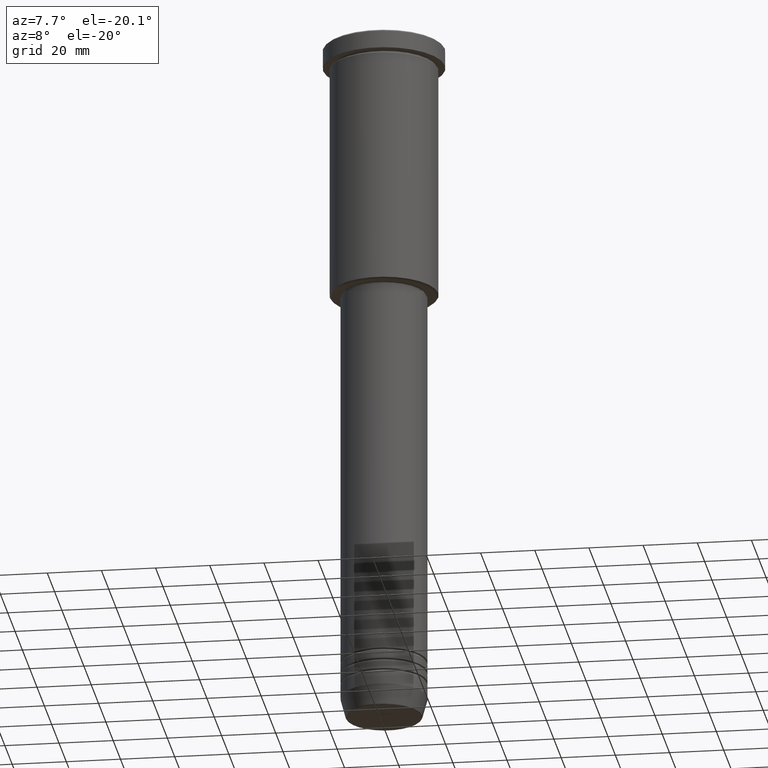
[diagram: clean part render]
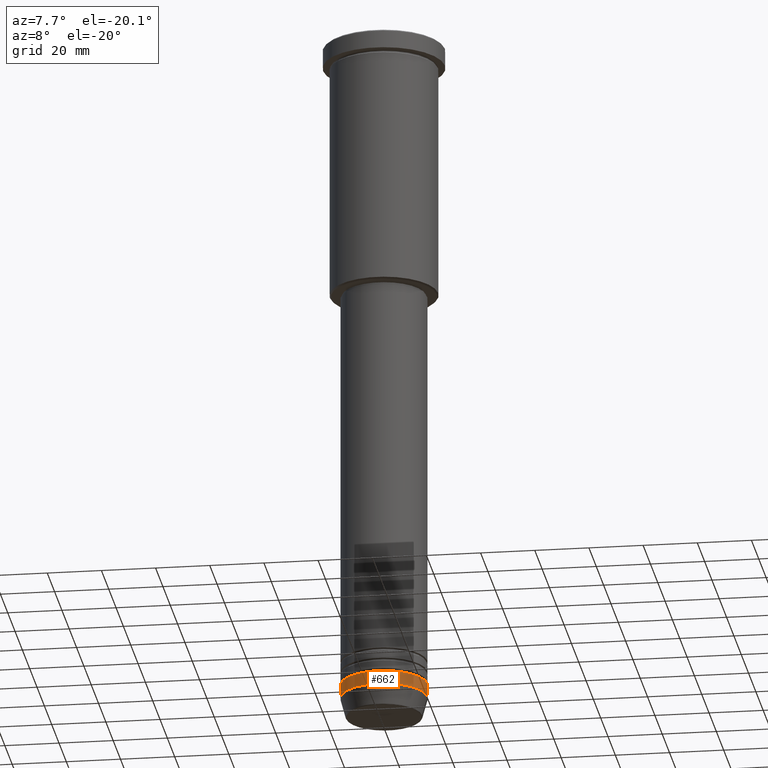
[diagram: same view with one face highlighted and labeled with its STEP entity id]
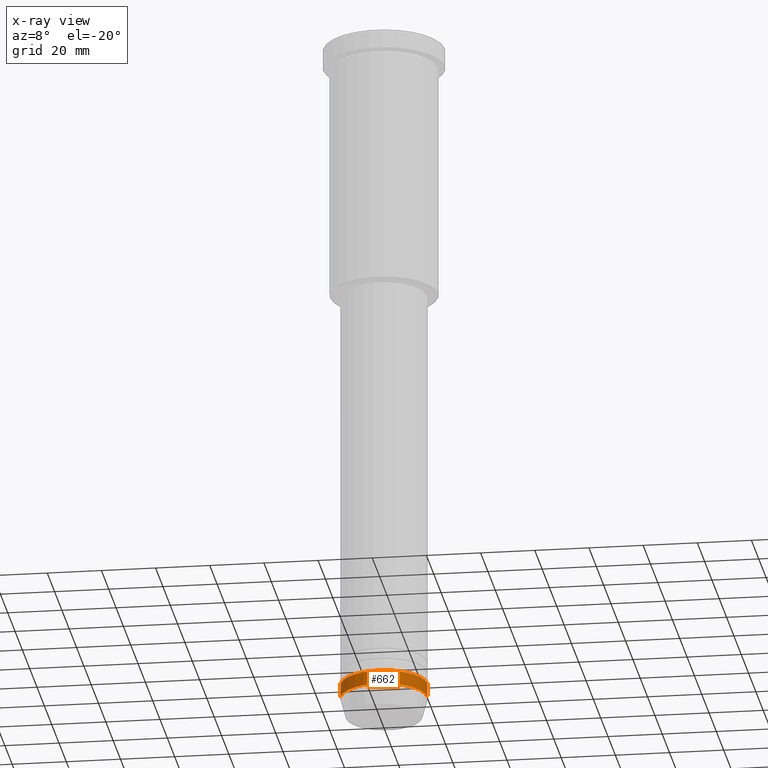
[diagram: x-ray of the same camera — body ghosted, the highlighted face saturated]
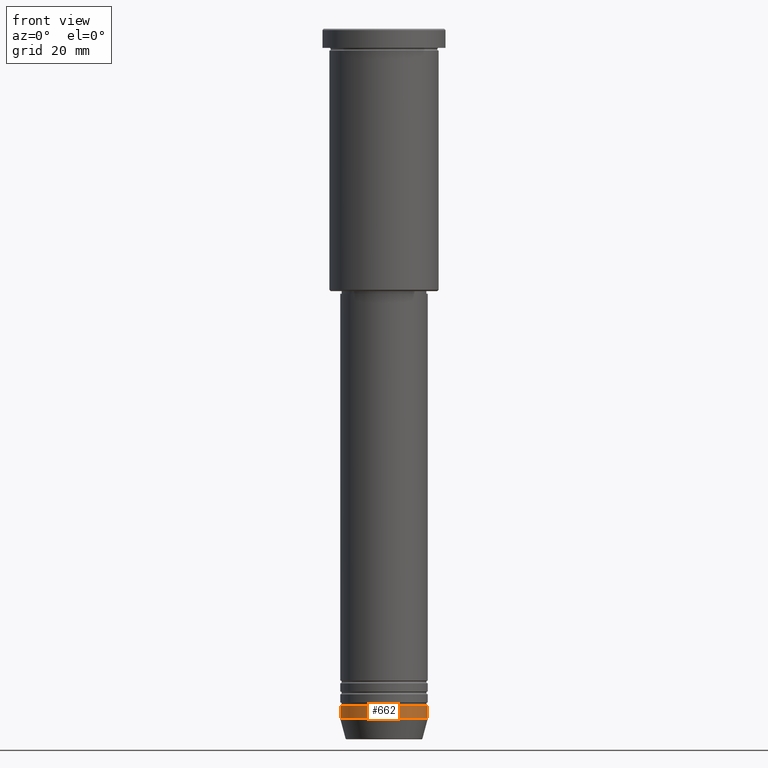
[diagram: same view with one face highlighted and labeled with its STEP entity id]
A machine part, auxiliary view. The second image highlights one B-rep face of the part: STEP entity #662.
The next image is the same camera in x-ray: the body ghosted, the highlighted face saturated — about 0% of this face is hidden behind the body in this view.
A second angle (front view) of the same face is appended — the face is thin or edge-on in the first view.
In plain terms, the highlighted cylindrical surface (partial cylindrical patch) has radius 16 mm, axis along (-0, -0, 1).
Its self-contained STEP definition (entity closure, byte-faithful):
#72 = AXIS2_PLACEMENT_3D ( 'NONE', #398, #285, #668 ) ;
#111 = CARTESIAN_POINT ( 'NONE',  ( -16.00000000000000000, 1.959434878635765131E-15, 0.000000000000000000 ) ) ;
#113 = DIRECTION ( 'NONE',  ( 1.000000000000000000, 0.000000000000000000, 0.000000000000000000 ) ) ;
#186 = DIRECTION ( 'NONE',  ( -0.000000000000000000, -0.000000000000000000, 1.000000000000000000 ) ) ;
#199 = EDGE_CURVE ( 'NONE', #420, #399, #274, .T. ) ;
#220 = LINE ( 'NONE', #111, #810 ) ;
#229 = CARTESIAN_POINT ( 'NONE',  ( 16.00000000000000000, 0.000000000000000000, -252.5000000000000000 ) ) ;
#253 = EDGE_CURVE ( 'NONE', #459, #420, #689, .T. ) ;
#257 = CIRCLE ( 'NONE', #72, 16.00000000000000000 ) ;
#274 = LINE ( 'NONE', #350, #739 ) ;
#281 = DIRECTION ( 'NONE',  ( -0.000000000000000000, -0.000000000000000000, 1.000000000000000000 ) ) ;
#285 = DIRECTION ( 'NONE',  ( -0.000000000000000000, -0.000000000000000000, 1.000000000000000000 ) ) ;
#313 = FACE_OUTER_BOUND ( 'NONE', #735, .T. ) ;
#350 = CARTESIAN_POINT ( 'NONE',  ( 16.00000000000000000, 0.000000000000000000, 0.000000000000000000 ) ) ;
#398 = CARTESIAN_POINT ( 'NONE',  ( 0.000000000000000000, 0.000000000000000000, -247.5000000000000000 ) ) ;
#399 = VERTEX_POINT ( 'NONE', #723 ) ;
#420 = VERTEX_POINT ( 'NONE', #229 ) ;
#445 = EDGE_CURVE ( 'NONE', #459, #640, #220, .T. ) ;
#459 = VERTEX_POINT ( 'NONE', #461 ) ;
#461 = CARTESIAN_POINT ( 'NONE',  ( -16.00000000000000000, 1.959434878635765131E-15, -252.5000000000000000 ) ) ;
#479 = CYLINDRICAL_SURFACE ( 'NONE', #1049, 16.00000000000000000 ) ;
#508 = DIRECTION ( 'NONE',  ( -0.000000000000000000, -0.000000000000000000, 1.000000000000000000 ) ) ;
#640 = VERTEX_POINT ( 'NONE', #759 ) ;
#662 = ADVANCED_FACE ( 'NONE', ( #313 ), #479, .T. ) ;
#668 = DIRECTION ( 'NONE',  ( 1.000000000000000000, 0.000000000000000000, 0.000000000000000000 ) ) ;
#689 = CIRCLE ( 'NONE', #1163, 16.00000000000000000 ) ;
#723 = CARTESIAN_POINT ( 'NONE',  ( 16.00000000000000000, 0.000000000000000000, -247.5000000000000000 ) ) ;
#735 = EDGE_LOOP ( 'NONE', ( #767, #756, #989, #871 ) ) ;
#739 = VECTOR ( 'NONE', #1091, 1000.000000000000000 ) ;
#756 = ORIENTED_EDGE ( 'NONE', *, *, #253, .T. ) ;
#759 = CARTESIAN_POINT ( 'NONE',  ( -16.00000000000000000, 1.959434878635765131E-15, -247.5000000000000000 ) ) ;
#767 = ORIENTED_EDGE ( 'NONE', *, *, #445, .F. ) ;
#776 = CARTESIAN_POINT ( 'NONE',  ( 0.000000000000000000, 0.000000000000000000, 0.000000000000000000 ) ) ;
#810 = VECTOR ( 'NONE', #186, 1000.000000000000000 ) ;
#871 = ORIENTED_EDGE ( 'NONE', *, *, #911, .F. ) ;
#877 = DIRECTION ( 'NONE',  ( 1.000000000000000000, 0.000000000000000000, 0.000000000000000000 ) ) ;
#911 = EDGE_CURVE ( 'NONE', #640, #399, #257, .T. ) ;
#935 = CARTESIAN_POINT ( 'NONE',  ( 0.000000000000000000, 0.000000000000000000, -252.5000000000000000 ) ) ;
#989 = ORIENTED_EDGE ( 'NONE', *, *, #199, .T. ) ;
#1049 = AXIS2_PLACEMENT_3D ( 'NONE', #776, #508, #877 ) ;
#1091 = DIRECTION ( 'NONE',  ( -0.000000000000000000, -0.000000000000000000, 1.000000000000000000 ) ) ;
#1163 = AXIS2_PLACEMENT_3D ( 'NONE', #935, #281, #113 ) ;